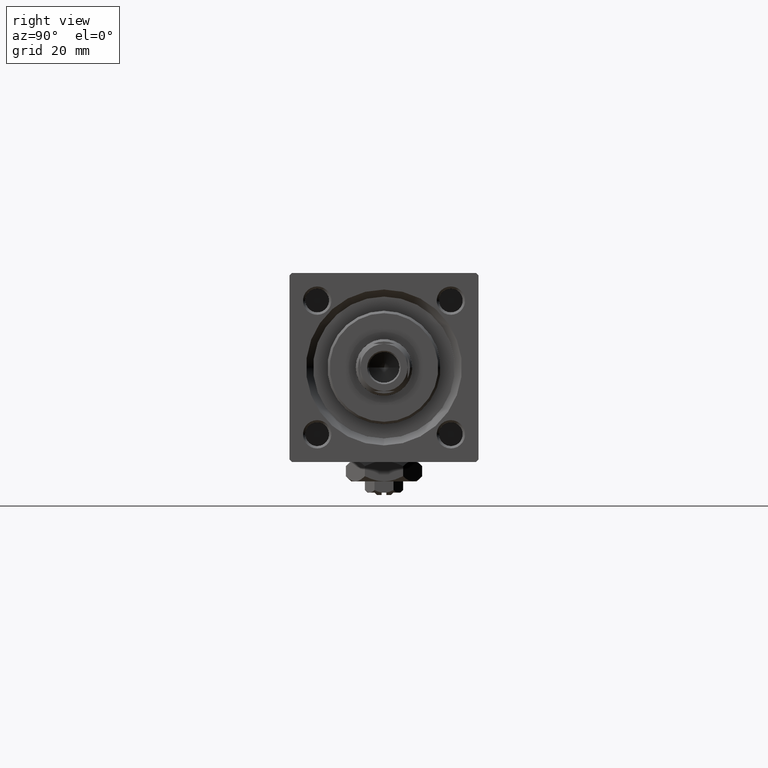
[diagram: clean part render]
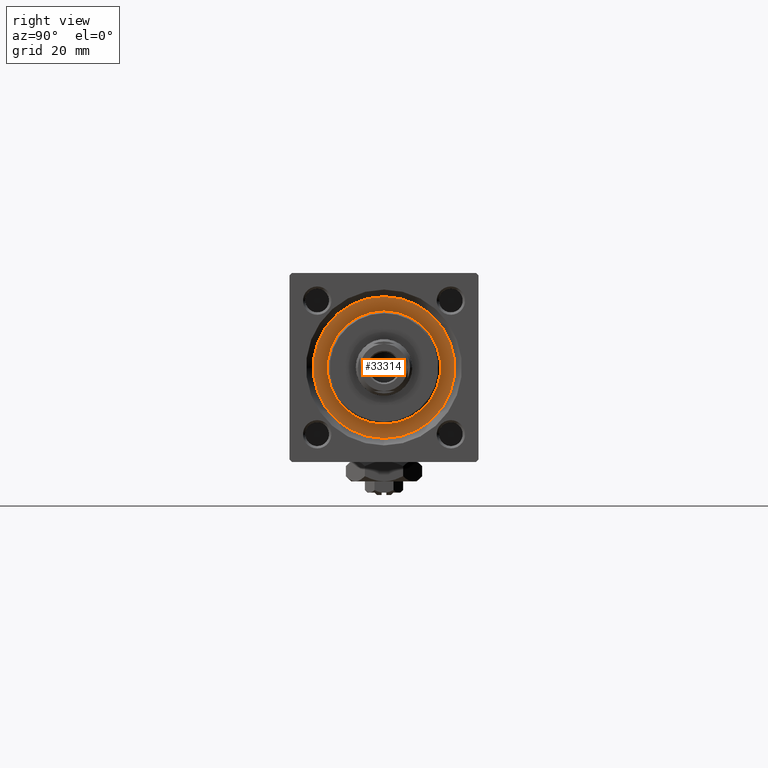
[diagram: same view with one face highlighted and labeled with its STEP entity id]
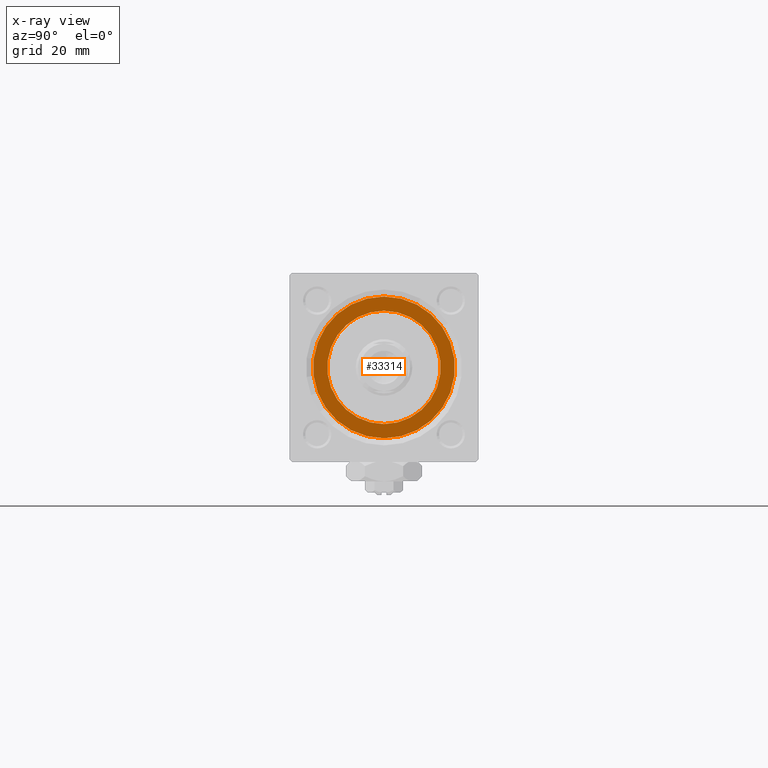
[diagram: x-ray of the same camera — body ghosted, the highlighted face saturated]
A machine part, right view. The second image highlights one B-rep face of the part: STEP entity #33314.
The next image is the same camera in x-ray: the body ghosted, the highlighted face saturated — about 0% of this face is hidden behind the body in this view.
In plain terms, the highlighted planar face has unit normal (1, 0, 0).
Its self-contained STEP definition (entity closure, byte-faithful):
#166 = CARTESIAN_POINT ( 'NONE',  ( 0.000000000000000000, 0.000000000000000000, 28.69999999999999929 ) ) ;
#956 = CIRCLE ( 'NONE', #16959, 15.00000000000000000 ) ;
#1241 = AXIS2_PLACEMENT_3D ( 'NONE', #50295, #29499, #21862 ) ;
#3570 = ORIENTED_EDGE ( 'NONE', *, *, #5925, .F. ) ;
#3865 = FACE_BOUND ( 'NONE', #6874, .T. ) ;
#4624 = VERTEX_POINT ( 'NONE', #17230 ) ;
#5925 = EDGE_CURVE ( 'NONE', #40184, #49542, #14974, .T. ) ;
#6874 = EDGE_LOOP ( 'NONE', ( #18805, #3570 ) ) ;
#7897 = DIRECTION ( 'NONE',  ( 1.000000000000000000, 0.000000000000000000, 0.000000000000000000 ) ) ;
#8336 = FACE_OUTER_BOUND ( 'NONE', #27538, .T. ) ;
#14682 = CIRCLE ( 'NONE', #1241, 15.00000000000000000 ) ;
#14974 = CIRCLE ( 'NONE', #30956, 12.00000000000000178 ) ;
#16959 = AXIS2_PLACEMENT_3D ( 'NONE', #38664, #50780, #46840 ) ;
#17230 = CARTESIAN_POINT ( 'NONE',  ( 15.00000000000000000, 1.836970198721029589E-15, 28.69999999999999929 ) ) ;
#18294 = EDGE_CURVE ( 'NONE', #4624, #38272, #956, .T. ) ;
#18805 = ORIENTED_EDGE ( 'NONE', *, *, #41998, .F. ) ;
#19971 = DIRECTION ( 'NONE',  ( 0.000000000000000000, 0.000000000000000000, 1.000000000000000000 ) ) ;
#20232 = PLANE ( 'NONE',  #32295 ) ;
#20927 = CARTESIAN_POINT ( 'NONE',  ( -12.00000000000000178, 0.000000000000000000, 28.69999999999999929 ) ) ;
#21862 = DIRECTION ( 'NONE',  ( 1.000000000000000000, 0.000000000000000000, 0.000000000000000000 ) ) ;
#23204 = CARTESIAN_POINT ( 'NONE',  ( 12.00000000000000178, 1.469576158976824144E-15, 28.69999999999999929 ) ) ;
#23984 = DIRECTION ( 'NONE',  ( 1.000000000000000000, 0.000000000000000000, 0.000000000000000000 ) ) ;
#27538 = EDGE_LOOP ( 'NONE', ( #40196, #48556 ) ) ;
#28989 = DIRECTION ( 'NONE',  ( 0.000000000000000000, 0.000000000000000000, 1.000000000000000000 ) ) ;
#29499 = DIRECTION ( 'NONE',  ( 0.000000000000000000, 0.000000000000000000, 1.000000000000000000 ) ) ;
#30956 = AXIS2_PLACEMENT_3D ( 'NONE', #31880, #43997, #23984 ) ;
#31880 = CARTESIAN_POINT ( 'NONE',  ( 0.000000000000000000, 0.000000000000000000, 28.69999999999999929 ) ) ;
#32295 = AXIS2_PLACEMENT_3D ( 'NONE', #166, #19971, #36024 ) ;
#32423 = CARTESIAN_POINT ( 'NONE',  ( 0.000000000000000000, 0.000000000000000000, 28.69999999999999929 ) ) ;
#33314 = ADVANCED_FACE ( 'NONE', ( #3865, #8336 ), #20232, .T. ) ;
#36024 = DIRECTION ( 'NONE',  ( 1.000000000000000000, 0.000000000000000000, -0.000000000000000000 ) ) ;
#36097 = EDGE_CURVE ( 'NONE', #38272, #4624, #14682, .T. ) ;
#38272 = VERTEX_POINT ( 'NONE', #51608 ) ;
#38504 = AXIS2_PLACEMENT_3D ( 'NONE', #32423, #28989, #7897 ) ;
#38664 = CARTESIAN_POINT ( 'NONE',  ( 0.000000000000000000, 0.000000000000000000, 28.69999999999999929 ) ) ;
#40184 = VERTEX_POINT ( 'NONE', #23204 ) ;
#40196 = ORIENTED_EDGE ( 'NONE', *, *, #36097, .T. ) ;
#41998 = EDGE_CURVE ( 'NONE', #49542, #40184, #43531, .T. ) ;
#43531 = CIRCLE ( 'NONE', #38504, 12.00000000000000178 ) ;
#43997 = DIRECTION ( 'NONE',  ( 0.000000000000000000, 0.000000000000000000, 1.000000000000000000 ) ) ;
#46840 = DIRECTION ( 'NONE',  ( 1.000000000000000000, 0.000000000000000000, 0.000000000000000000 ) ) ;
#48556 = ORIENTED_EDGE ( 'NONE', *, *, #18294, .T. ) ;
#49542 = VERTEX_POINT ( 'NONE', #20927 ) ;
#50295 = CARTESIAN_POINT ( 'NONE',  ( 0.000000000000000000, 0.000000000000000000, 28.69999999999999929 ) ) ;
#50780 = DIRECTION ( 'NONE',  ( 0.000000000000000000, 0.000000000000000000, 1.000000000000000000 ) ) ;
#51608 = CARTESIAN_POINT ( 'NONE',  ( -15.00000000000000000, 0.000000000000000000, 28.69999999999999929 ) ) ;